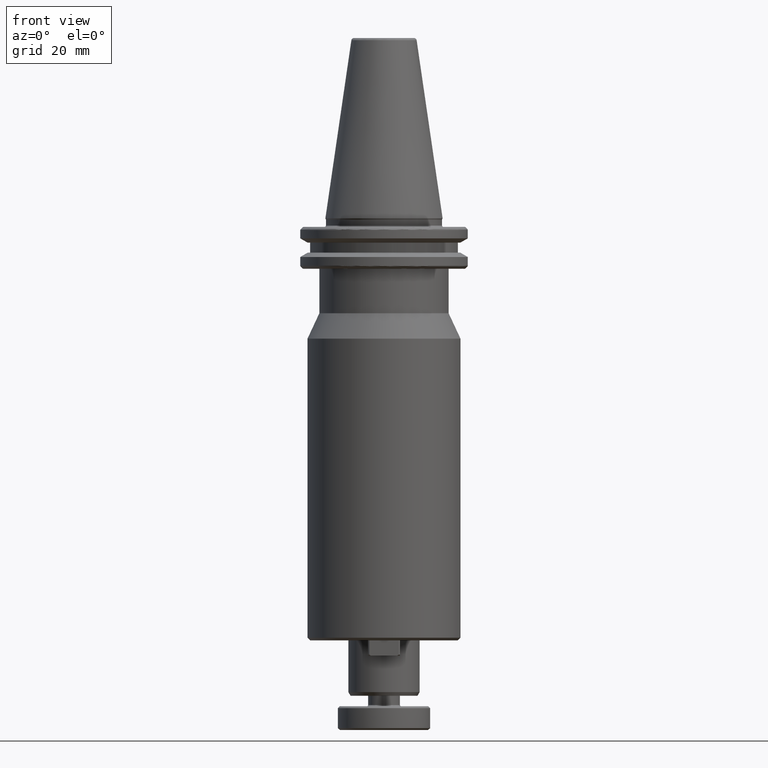
[diagram: clean part render]
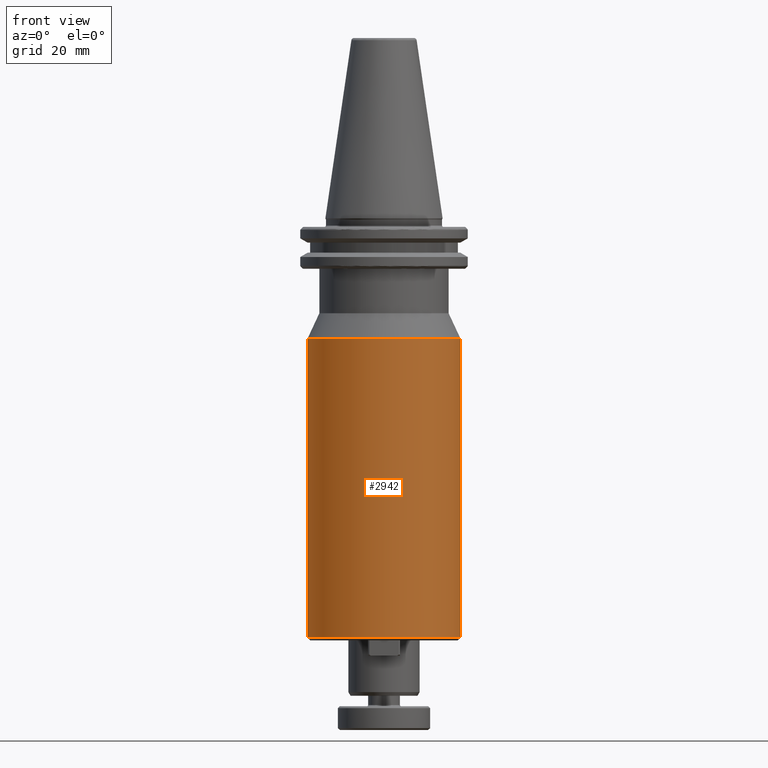
[diagram: same view with one face highlighted and labeled with its STEP entity id]
A machine part, front view. The second image highlights one B-rep face of the part: STEP entity #2942.
In plain terms, the highlighted cylindrical surface (partial cylindrical patch) has radius 29 mm, axis along (0, 0, 1).
Its self-contained STEP definition (entity closure, byte-faithful):
#34 = VERTEX_POINT ( 'NONE', #3231 ) ;
#181 = CARTESIAN_POINT ( 'NONE',  ( -29.00000000000000000, 3.551475717527324000E-015, 82.95681253582424100 ) ) ;
#333 = ORIENTED_EDGE ( 'NONE', *, *, #1488, .F. ) ;
#374 = DIRECTION ( 'NONE',  ( -0.0000000000000000000, -0.0000000000000000000, -1.000000000000000000 ) ) ;
#447 = AXIS2_PLACEMENT_3D ( 'NONE', #2419, #374, #2770 ) ;
#511 = EDGE_LOOP ( 'NONE', ( #333, #4023, #3301, #1140 ) ) ;
#874 = DIRECTION ( 'NONE',  ( 1.000000000000000000, 0.0000000000000000000, 0.0000000000000000000 ) ) ;
#879 = DIRECTION ( 'NONE',  ( 0.0000000000000000000, 0.0000000000000000000, 1.000000000000000000 ) ) ;
#881 = CARTESIAN_POINT ( 'NONE',  ( 0.0000000000000000000, 0.0000000000000000000, -159.0000000000000000 ) ) ;
#950 = EDGE_CURVE ( 'NONE', #1304, #2092, #2090, .T. ) ;
#971 = EDGE_CURVE ( 'NONE', #34, #1304, #1987, .T. ) ;
#987 = DIRECTION ( 'NONE',  ( 0.0000000000000000000, 0.0000000000000000000, 1.000000000000000000 ) ) ;
#1083 = DIRECTION ( 'NONE',  ( 1.000000000000000000, 0.0000000000000000000, 0.0000000000000000000 ) ) ;
#1096 = DIRECTION ( 'NONE',  ( 0.0000000000000000000, 0.0000000000000000000, 1.000000000000000000 ) ) ;
#1107 = CARTESIAN_POINT ( 'NONE',  ( 29.00000000000000000, 0.0000000000000000000, 82.95681253582424100 ) ) ;
#1140 = ORIENTED_EDGE ( 'NONE', *, *, #3657, .T. ) ;
#1186 = VECTOR ( 'NONE', #987, 1000.000000000000000 ) ;
#1304 = VERTEX_POINT ( 'NONE', #2168 ) ;
#1316 = VECTOR ( 'NONE', #1096, 1000.000000000000000 ) ;
#1424 = LINE ( 'NONE', #181, #1316 ) ;
#1488 = EDGE_CURVE ( 'NONE', #34, #4184, #1424, .T. ) ;
#1987 = CIRCLE ( 'NONE', #3825, 29.00000000000000000 ) ;
#2090 = LINE ( 'NONE', #1107, #1186 ) ;
#2092 = VERTEX_POINT ( 'NONE', #3852 ) ;
#2168 = CARTESIAN_POINT ( 'NONE',  ( 29.00000000000000400, 0.0000000000000000000, -159.0000000000000000 ) ) ;
#2419 = CARTESIAN_POINT ( 'NONE',  ( 0.0000000000000000000, 0.0000000000000000000, -45.60000000000000100 ) ) ;
#2770 = DIRECTION ( 'NONE',  ( 1.000000000000000000, 0.0000000000000000000, 0.0000000000000000000 ) ) ;
#2793 = CYLINDRICAL_SURFACE ( 'NONE', #2982, 29.00000000000000000 ) ;
#2868 = DIRECTION ( 'NONE',  ( 0.0000000000000000000, 0.0000000000000000000, 1.000000000000000000 ) ) ;
#2896 = FACE_OUTER_BOUND ( 'NONE', #511, .T. ) ;
#2942 = ADVANCED_FACE ( 'NONE', ( #2896 ), #2793, .T. ) ;
#2982 = AXIS2_PLACEMENT_3D ( 'NONE', #4211, #2868, #1083 ) ;
#3231 = CARTESIAN_POINT ( 'NONE',  ( -29.00000000000000400, 3.551475717527324800E-015, -159.0000000000000000 ) ) ;
#3301 = ORIENTED_EDGE ( 'NONE', *, *, #950, .T. ) ;
#3657 = EDGE_CURVE ( 'NONE', #2092, #4184, #3837, .T. ) ;
#3825 = AXIS2_PLACEMENT_3D ( 'NONE', #881, #879, #874 ) ;
#3833 = CARTESIAN_POINT ( 'NONE',  ( -29.00000000000000000, 0.0000000000000000000, -45.60000000000000100 ) ) ;
#3837 = CIRCLE ( 'NONE', #447, 29.00000000000000000 ) ;
#3852 = CARTESIAN_POINT ( 'NONE',  ( 29.00000000000000000, 3.551475717527324000E-015, -45.60000000000000100 ) ) ;
#4023 = ORIENTED_EDGE ( 'NONE', *, *, #971, .T. ) ;
#4184 = VERTEX_POINT ( 'NONE', #3833 ) ;
#4211 = CARTESIAN_POINT ( 'NONE',  ( 0.0000000000000000000, 0.0000000000000000000, 82.95681253582424100 ) ) ;